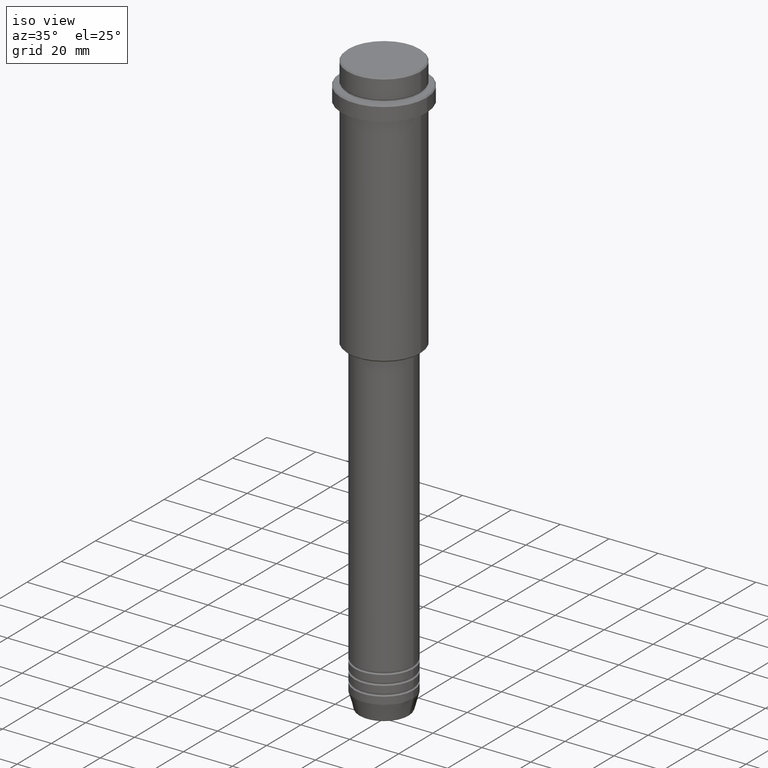
[diagram: clean part render]
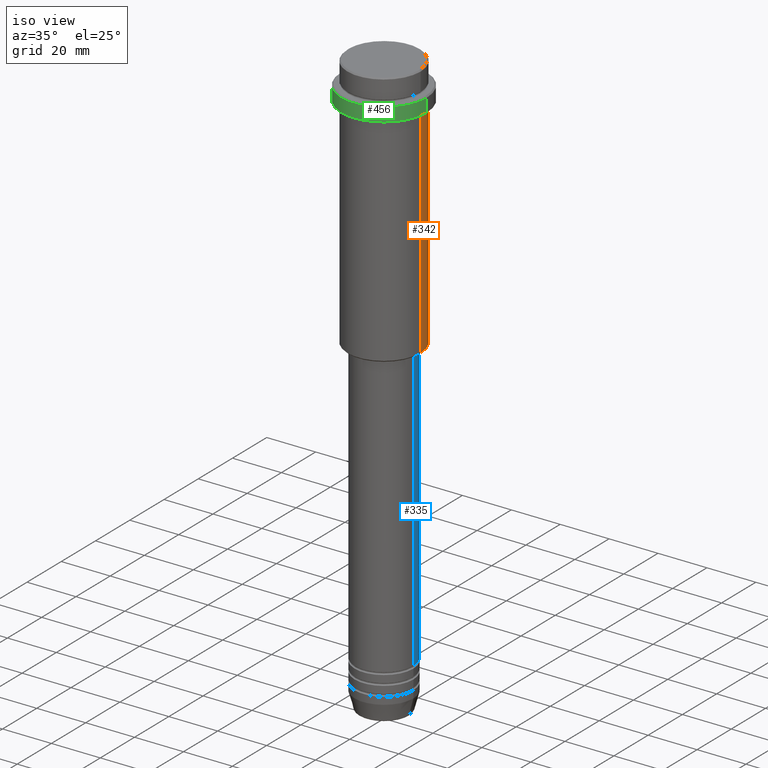
[diagram: same view with three faces highlighted in distinct colors, each labeled with its STEP entity id]
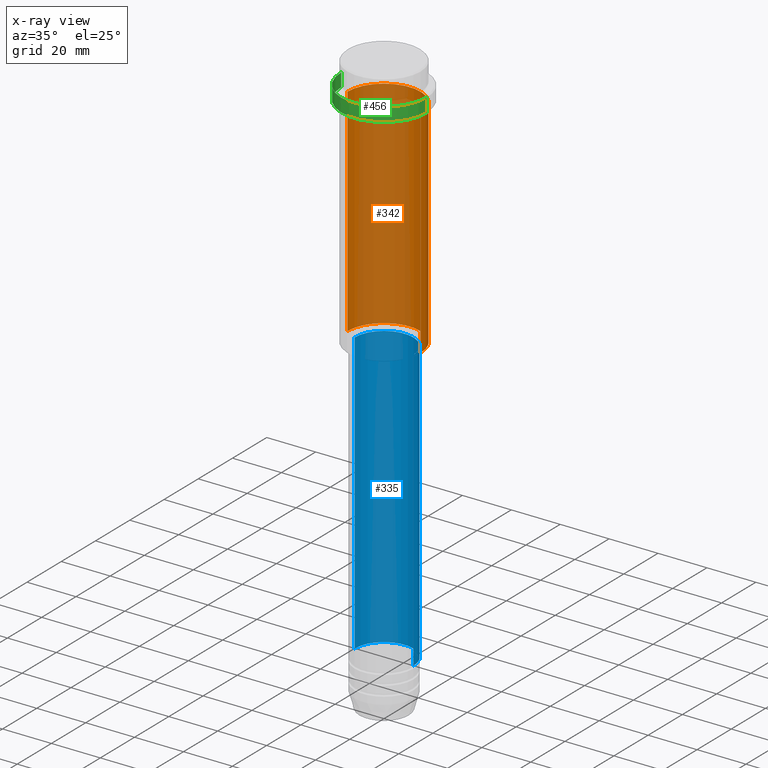
[diagram: x-ray of the same camera — body ghosted, the three highlighted faces saturated]
A machine part, iso view with three faces highlighted in distinct colors.
The next image is the same camera in x-ray (body ghosted, the three faces saturated) — at least one of them is partly hidden behind the body in this view.
Their STEP definitions:

[orange] entity #342 — the highlighted cylindrical surface (partial cylindrical patch) has radius 15 mm, axis along (-0, -0, 1).
#4 = ORIENTED_EDGE ( 'NONE', *, *, #24, .T. ) ;
#24 = EDGE_CURVE ( 'NONE', #274, #879, #978, .T. ) ;
#68 = VERTEX_POINT ( 'NONE', #241 ) ;
#90 = DIRECTION ( 'NONE',  ( 1.000000000000000000, 0.000000000000000000, 0.000000000000000000 ) ) ;
#96 = DIRECTION ( 'NONE',  ( -0.000000000000000000, -0.000000000000000000, 1.000000000000000000 ) ) ;
#122 = AXIS2_PLACEMENT_3D ( 'NONE', #1286, #1065, #90 ) ;
#135 = DIRECTION ( 'NONE',  ( -0.000000000000000000, -0.000000000000000000, 1.000000000000000000 ) ) ;
#167 = CIRCLE ( 'NONE', #122, 15.00000000000000178 ) ;
#241 = CARTESIAN_POINT ( 'NONE',  ( 15.00000000000000178, 0.000000000000000000, -16.00000000000000000 ) ) ;
#271 = LINE ( 'NONE', #470, #349 ) ;
#274 = VERTEX_POINT ( 'NONE', #935 ) ;
#288 = CARTESIAN_POINT ( 'NONE',  ( 0.000000000000000000, 0.000000000000000000, 0.000000000000000000 ) ) ;
#342 = ADVANCED_FACE ( 'NONE', ( #1395 ), #1072, .T. ) ;
#349 = VECTOR ( 'NONE', #1014, 1000.000000000000000 ) ;
#426 = DIRECTION ( 'NONE',  ( 1.000000000000000000, 0.000000000000000000, 0.000000000000000000 ) ) ;
#427 = EDGE_CURVE ( 'NONE', #68, #879, #167, .T. ) ;
#470 = CARTESIAN_POINT ( 'NONE',  ( 15.00000000000000000, 0.000000000000000000, 0.000000000000000000 ) ) ;
#514 = EDGE_CURVE ( 'NONE', #894, #274, #686, .T. ) ;
#659 = CARTESIAN_POINT ( 'NONE',  ( -15.00000000000000355, 1.836970198721029983E-15, -16.00000000000000000 ) ) ;
#660 = CARTESIAN_POINT ( 'NONE',  ( 0.000000000000000000, 0.000000000000000000, -104.4999999999999147 ) ) ;
#686 = CIRCLE ( 'NONE', #937, 15.00000000000000000 ) ;
#690 = VECTOR ( 'NONE', #135, 1000.000000000000000 ) ;
#731 = AXIS2_PLACEMENT_3D ( 'NONE', #288, #96, #426 ) ;
#871 = CARTESIAN_POINT ( 'NONE',  ( -15.00000000000000000, 1.836970198721029589E-15, 0.000000000000000000 ) ) ;
#879 = VERTEX_POINT ( 'NONE', #659 ) ;
#888 = DIRECTION ( 'NONE',  ( -1.000000000000000000, 0.000000000000000000, 0.000000000000000000 ) ) ;
#894 = VERTEX_POINT ( 'NONE', #1306 ) ;
#935 = CARTESIAN_POINT ( 'NONE',  ( -15.00000000000000000, 1.836970198721029589E-15, -104.4999999999999147 ) ) ;
#937 = AXIS2_PLACEMENT_3D ( 'NONE', #660, #1098, #888 ) ;
#978 = LINE ( 'NONE', #871, #690 ) ;
#994 = ORIENTED_EDGE ( 'NONE', *, *, #514, .T. ) ;
#1014 = DIRECTION ( 'NONE',  ( -0.000000000000000000, -0.000000000000000000, 1.000000000000000000 ) ) ;
#1065 = DIRECTION ( 'NONE',  ( -0.000000000000000000, -0.000000000000000000, 1.000000000000000000 ) ) ;
#1070 = EDGE_CURVE ( 'NONE', #894, #68, #271, .T. ) ;
#1072 = CYLINDRICAL_SURFACE ( 'NONE', #731, 15.00000000000000000 ) ;
#1098 = DIRECTION ( 'NONE',  ( -0.000000000000000000, -0.000000000000000000, 1.000000000000000000 ) ) ;
#1112 = ORIENTED_EDGE ( 'NONE', *, *, #427, .F. ) ;
#1130 = ORIENTED_EDGE ( 'NONE', *, *, #1070, .F. ) ;
#1286 = CARTESIAN_POINT ( 'NONE',  ( 0.000000000000000000, 0.000000000000000000, -16.00000000000000000 ) ) ;
#1306 = CARTESIAN_POINT ( 'NONE',  ( 15.00000000000000000, 0.000000000000000000, -104.4999999999999147 ) ) ;
#1390 = EDGE_LOOP ( 'NONE', ( #994, #4, #1112, #1130 ) ) ;
#1395 = FACE_OUTER_BOUND ( 'NONE', #1390, .T. ) ;

[blue] entity #335 — the highlighted cylindrical surface (edge-blend (fillet) strip) has radius 12 mm, axis along (-0, -0, 1).
#25 = CARTESIAN_POINT ( 'NONE',  ( -12.00000000000000000, 1.469576158976823947E-15, -220.9999999999999432 ) ) ;
#60 = VERTEX_POINT ( 'NONE', #25 ) ;
#66 = CARTESIAN_POINT ( 'NONE',  ( -12.00000000000000000, 1.469576158976823947E-15, 0.000000000000000000 ) ) ;
#74 = ORIENTED_EDGE ( 'NONE', *, *, #165, .T. ) ;
#77 = CARTESIAN_POINT ( 'NONE',  ( 0.000000000000000000, 0.000000000000000000, 0.000000000000000000 ) ) ;
#117 = CARTESIAN_POINT ( 'NONE',  ( 12.00000000000000000, 0.000000000000000000, -220.9999999999999432 ) ) ;
#165 = EDGE_CURVE ( 'NONE', #60, #932, #1024, .T. ) ;
#199 = CYLINDRICAL_SURFACE ( 'NONE', #916, 12.00000000000000000 ) ;
#277 = CARTESIAN_POINT ( 'NONE',  ( 0.000000000000000000, 0.000000000000000000, -106.0000000000000142 ) ) ;
#304 = CIRCLE ( 'NONE', #462, 12.00000000000000000 ) ;
#335 = ADVANCED_FACE ( 'NONE', ( #395 ), #199, .T. ) ;
#357 = CARTESIAN_POINT ( 'NONE',  ( 0.000000000000000000, 0.000000000000000000, -220.9999999999999432 ) ) ;
#395 = FACE_OUTER_BOUND ( 'NONE', #428, .T. ) ;
#428 = EDGE_LOOP ( 'NONE', ( #658, #74, #1159, #716 ) ) ;
#462 = AXIS2_PLACEMENT_3D ( 'NONE', #357, #895, #790 ) ;
#506 = LINE ( 'NONE', #753, #1331 ) ;
#519 = VERTEX_POINT ( 'NONE', #117 ) ;
#658 = ORIENTED_EDGE ( 'NONE', *, *, #1144, .T. ) ;
#710 = DIRECTION ( 'NONE',  ( 1.000000000000000000, 0.000000000000000000, 0.000000000000000000 ) ) ;
#716 = ORIENTED_EDGE ( 'NONE', *, *, #860, .F. ) ;
#753 = CARTESIAN_POINT ( 'NONE',  ( 12.00000000000000000, 0.000000000000000000, 0.000000000000000000 ) ) ;
#790 = DIRECTION ( 'NONE',  ( 1.000000000000000000, 0.000000000000000000, 0.000000000000000000 ) ) ;
#825 = VERTEX_POINT ( 'NONE', #1273 ) ;
#839 = DIRECTION ( 'NONE',  ( -0.000000000000000000, -0.000000000000000000, 1.000000000000000000 ) ) ;
#851 = CIRCLE ( 'NONE', #1058, 11.99999999999999822 ) ;
#857 = DIRECTION ( 'NONE',  ( 1.000000000000000000, 0.000000000000000000, 0.000000000000000000 ) ) ;
#860 = EDGE_CURVE ( 'NONE', #519, #825, #506, .T. ) ;
#880 = DIRECTION ( 'NONE',  ( -0.000000000000000000, -0.000000000000000000, 1.000000000000000000 ) ) ;
#895 = DIRECTION ( 'NONE',  ( -0.000000000000000000, -0.000000000000000000, 1.000000000000000000 ) ) ;
#916 = AXIS2_PLACEMENT_3D ( 'NONE', #77, #1046, #857 ) ;
#932 = VERTEX_POINT ( 'NONE', #1202 ) ;
#1024 = LINE ( 'NONE', #66, #1177 ) ;
#1046 = DIRECTION ( 'NONE',  ( -0.000000000000000000, -0.000000000000000000, 1.000000000000000000 ) ) ;
#1058 = AXIS2_PLACEMENT_3D ( 'NONE', #277, #839, #710 ) ;
#1144 = EDGE_CURVE ( 'NONE', #519, #60, #304, .T. ) ;
#1159 = ORIENTED_EDGE ( 'NONE', *, *, #1252, .F. ) ;
#1177 = VECTOR ( 'NONE', #1257, 1000.000000000000000 ) ;
#1202 = CARTESIAN_POINT ( 'NONE',  ( -11.99999999999999822, 1.469576158976823750E-15, -106.0000000000000142 ) ) ;
#1252 = EDGE_CURVE ( 'NONE', #825, #932, #851, .T. ) ;
#1257 = DIRECTION ( 'NONE',  ( -0.000000000000000000, -0.000000000000000000, 1.000000000000000000 ) ) ;
#1273 = CARTESIAN_POINT ( 'NONE',  ( 11.99999999999999822, 0.000000000000000000, -106.0000000000000142 ) ) ;
#1331 = VECTOR ( 'NONE', #880, 1000.000000000000000 ) ;

[green] entity #456 — the highlighted cylindrical surface (partial cylindrical patch) has radius 17.5 mm, axis along (-0, -0, 1).
#17 = DIRECTION ( 'NONE',  ( -0.000000000000000000, -0.000000000000000000, 1.000000000000000000 ) ) ;
#87 = CARTESIAN_POINT ( 'NONE',  ( 17.50000000000000000, 0.000000000000000000, -9.499999999999973355 ) ) ;
#95 = DIRECTION ( 'NONE',  ( -0.000000000000000000, -0.000000000000000000, 1.000000000000000000 ) ) ;
#120 = VERTEX_POINT ( 'NONE', #601 ) ;
#133 = VERTEX_POINT ( 'NONE', #156 ) ;
#140 = DIRECTION ( 'NONE',  ( 0.000000000000000000, 0.000000000000000000, -1.000000000000000000 ) ) ;
#156 = CARTESIAN_POINT ( 'NONE',  ( -17.50000000000000000, 2.143131898507868248E-15, -9.499999999999973355 ) ) ;
#158 = EDGE_CURVE ( 'NONE', #1158, #1193, #684, .T. ) ;
#191 = EDGE_LOOP ( 'NONE', ( #1211, #685, #1319, #455 ) ) ;
#212 = CYLINDRICAL_SURFACE ( 'NONE', #663, 17.50000000000000000 ) ;
#221 = DIRECTION ( 'NONE',  ( 1.000000000000000000, 0.000000000000000000, 0.000000000000000000 ) ) ;
#334 = FACE_OUTER_BOUND ( 'NONE', #191, .T. ) ;
#374 = VECTOR ( 'NONE', #700, 1000.000000000000000 ) ;
#438 = AXIS2_PLACEMENT_3D ( 'NONE', #785, #140, #705 ) ;
#455 = ORIENTED_EDGE ( 'NONE', *, *, #605, .T. ) ;
#456 = ADVANCED_FACE ( 'NONE', ( #334 ), #212, .T. ) ;
#466 = CARTESIAN_POINT ( 'NONE',  ( 17.50000000000000000, 0.000000000000000000, 0.000000000000000000 ) ) ;
#508 = AXIS2_PLACEMENT_3D ( 'NONE', #1195, #17, #1084 ) ;
#601 = CARTESIAN_POINT ( 'NONE',  ( -17.50000000000000000, 2.143131898507868248E-15, -15.00000000000000178 ) ) ;
#605 = EDGE_CURVE ( 'NONE', #1193, #133, #1356, .T. ) ;
#655 = CARTESIAN_POINT ( 'NONE',  ( 0.000000000000000000, 0.000000000000000000, 0.000000000000000000 ) ) ;
#663 = AXIS2_PLACEMENT_3D ( 'NONE', #655, #972, #221 ) ;
#684 = LINE ( 'NONE', #466, #374 ) ;
#685 = ORIENTED_EDGE ( 'NONE', *, *, #883, .T. ) ;
#687 = VECTOR ( 'NONE', #95, 1000.000000000000000 ) ;
#700 = DIRECTION ( 'NONE',  ( -0.000000000000000000, -0.000000000000000000, 1.000000000000000000 ) ) ;
#705 = DIRECTION ( 'NONE',  ( 1.000000000000000000, 0.000000000000000000, 0.000000000000000000 ) ) ;
#714 = CARTESIAN_POINT ( 'NONE',  ( -17.50000000000000000, 2.143131898507868248E-15, 0.000000000000000000 ) ) ;
#725 = LINE ( 'NONE', #714, #687 ) ;
#785 = CARTESIAN_POINT ( 'NONE',  ( 0.000000000000000000, 0.000000000000000000, -9.499999999999973355 ) ) ;
#789 = EDGE_CURVE ( 'NONE', #120, #133, #725, .T. ) ;
#883 = EDGE_CURVE ( 'NONE', #120, #1158, #1359, .T. ) ;
#972 = DIRECTION ( 'NONE',  ( -0.000000000000000000, -0.000000000000000000, 1.000000000000000000 ) ) ;
#1084 = DIRECTION ( 'NONE',  ( 1.000000000000000000, 0.000000000000000000, 0.000000000000000000 ) ) ;
#1121 = CARTESIAN_POINT ( 'NONE',  ( 17.50000000000000000, 0.000000000000000000, -15.00000000000000178 ) ) ;
#1158 = VERTEX_POINT ( 'NONE', #1121 ) ;
#1193 = VERTEX_POINT ( 'NONE', #87 ) ;
#1195 = CARTESIAN_POINT ( 'NONE',  ( 0.000000000000000000, 0.000000000000000000, -15.00000000000000178 ) ) ;
#1211 = ORIENTED_EDGE ( 'NONE', *, *, #789, .F. ) ;
#1319 = ORIENTED_EDGE ( 'NONE', *, *, #158, .T. ) ;
#1356 = CIRCLE ( 'NONE', #438, 17.50000000000000000 ) ;
#1359 = CIRCLE ( 'NONE', #508, 17.50000000000000000 ) ;